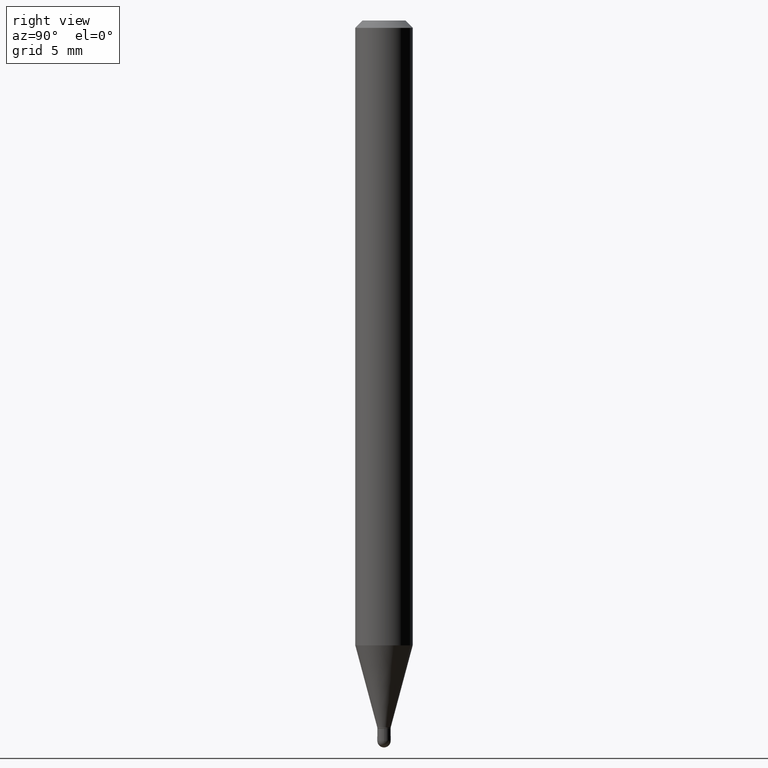
[diagram: clean part render]
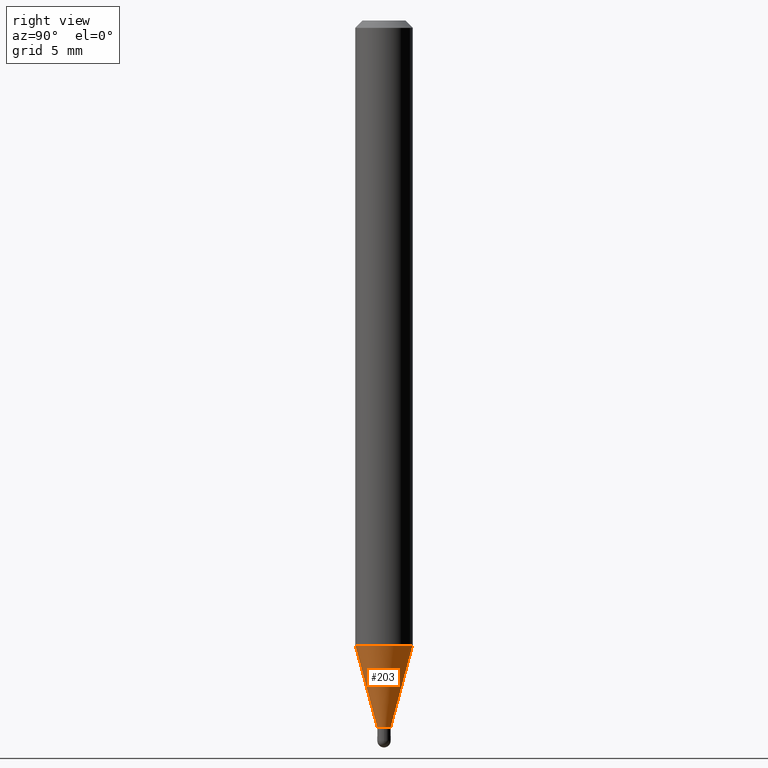
[diagram: same view with one face highlighted and labeled with its STEP entity id]
A machine part, right view. The second image highlights one B-rep face of the part: STEP entity #203.
In plain terms, the highlighted conical surface has half-angle 15 deg.
Its self-contained STEP definition (entity closure, byte-faithful):
#21 = VERTEX_POINT ( 'NONE', #121 ) ;
#24 = VERTEX_POINT ( 'NONE', #509 ) ;
#68 = AXIS2_PLACEMENT_3D ( 'NONE', #422, #253, #415 ) ;
#75 = CARTESIAN_POINT ( 'NONE',  ( -9.636488495203245968E-17, -0.01380000000000473036, -1.454800000000000093 ) ) ;
#81 = AXIS2_PLACEMENT_3D ( 'NONE', #299, #461, #153 ) ;
#83 = CARTESIAN_POINT ( 'NONE',  ( 9.805489753492690685E-17, 0.01379999999999457008, -1.454800000000000093 ) ) ;
#102 = VECTOR ( 'NONE', #320, 39.37007874015748143 ) ;
#103 = DIRECTION ( 'NONE',  ( -2.445498150151118420E-29, 3.491439316613704829E-15, 1.000000000000000000 ) ) ;
#121 = CARTESIAN_POINT ( 'NONE',  ( -9.636488495203245968E-17, -0.01380000000000473036, -1.454800000000000093 ) ) ;
#124 = VERTEX_POINT ( 'NONE', #381 ) ;
#153 = DIRECTION ( 'NONE',  ( -6.982962677686265922E-15, -1.000000000000000000, 0.000000000000000000 ) ) ;
#176 = EDGE_CURVE ( 'NONE', #21, #501, #206, .T. ) ;
#193 = CARTESIAN_POINT ( 'NONE',  ( 3.557710708839847100E-29, -5.079345917809617194E-15, -1.454800000000000093 ) ) ;
#194 = ORIENTED_EDGE ( 'NONE', *, *, #325, .T. ) ;
#203 = ADVANCED_FACE ( 'NONE', ( #265 ), #302, .T. ) ;
#206 = CIRCLE ( 'NONE', #81, 0.01379999999999965109 ) ;
#239 = LINE ( 'NONE', #83, #102 ) ;
#244 = VECTOR ( 'NONE', #314, 39.37007874015748143 ) ;
#247 = EDGE_CURVE ( 'NONE', #24, #124, #339, .T. ) ;
#253 = DIRECTION ( 'NONE',  ( -2.445498150151118420E-29, 3.491439316613704829E-15, 1.000000000000000000 ) ) ;
#264 = ORIENTED_EDGE ( 'NONE', *, *, #351, .F. ) ;
#265 = FACE_OUTER_BOUND ( 'NONE', #420, .T. ) ;
#290 = CARTESIAN_POINT ( 'NONE',  ( 2.588151915006488292E-16, 0.01379999999999457008, -1.454800000000000093 ) ) ;
#299 = CARTESIAN_POINT ( 'NONE',  ( 3.557710708839847100E-29, -5.079345917809617194E-15, -1.454800000000000093 ) ) ;
#302 = CONICAL_SURFACE ( 'NONE', #364, 0.01379999999999965109, 0.2617993877991523499 ) ;
#314 = DIRECTION ( 'NONE',  ( -1.807323732225343944E-15, -0.2588190451025201844, 0.9659258262890684232 ) ) ;
#320 = DIRECTION ( 'NONE',  ( 1.839019923739614515E-15, 0.2588190451025269567, 0.9659258262890665359 ) ) ;
#325 = EDGE_CURVE ( 'NONE', #501, #124, #239, .T. ) ;
#339 = CIRCLE ( 'NONE', #68, 0.05904999999999999832 ) ;
#351 = EDGE_CURVE ( 'NONE', #21, #24, #398, .T. ) ;
#364 = AXIS2_PLACEMENT_3D ( 'NONE', #193, #103, #412 ) ;
#381 = CARTESIAN_POINT ( 'NONE',  ( 4.195754854663704558E-16, 0.05904999999999550886, -1.285924700957509215 ) ) ;
#398 = LINE ( 'NONE', #75, #244 ) ;
#412 = DIRECTION ( 'NONE',  ( -6.982962677686265922E-15, -1.000000000000000000, 0.000000000000000000 ) ) ;
#415 = DIRECTION ( 'NONE',  ( -6.982962677686265922E-15, -1.000000000000000000, 4.626330217890369336E-15 ) ) ;
#420 = EDGE_LOOP ( 'NONE', ( #429, #194, #436, #264 ) ) ;
#422 = CARTESIAN_POINT ( 'NONE',  ( 3.144726477425218544E-29, -4.489728059127768371E-15, -1.285924700957508993 ) ) ;
#429 = ORIENTED_EDGE ( 'NONE', *, *, #176, .T. ) ;
#436 = ORIENTED_EDGE ( 'NONE', *, *, #247, .F. ) ;
#461 = DIRECTION ( 'NONE',  ( -2.445498150151118420E-29, 3.491439316613704829E-15, 1.000000000000000000 ) ) ;
#501 = VERTEX_POINT ( 'NONE', #290 ) ;
#509 = CARTESIAN_POINT ( 'NONE',  ( -4.123439461173426262E-16, -0.05905000000000449473, -1.285924700957508771 ) ) ;